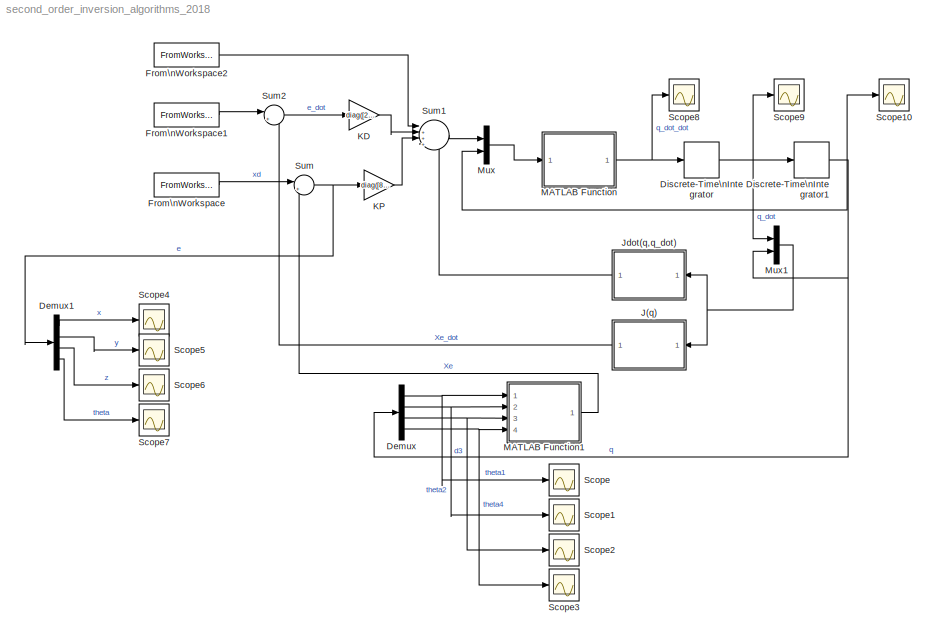
MODEL second_order_inversion_algorithms_2018
KIND model
BLOCK [Demux] Demux
  DisplayOption = bar
  Ports = [1, 4]
  SID = 18
BLOCK [Demux] Demux1
  DisplayOption = bar
  Ports = [1, 4]
  SID = 46
BLOCK [DiscreteIntegrator] Discrete-Time\nIntegrator
  ICPrevOutput = DiscIntNeverNeededParam
  ICPrevScaledInput = DiscIntNeverNeededParam
  InitialCondition = q0_dot
  InitialConditionSetting = Auto
  Ports = [1, 1]
  SID = 11
  SampleTime = Tc
BLOCK [DiscreteIntegrator] Discrete-Time\nIntegrator1
  ICPrevOutput = DiscIntNeverNeededParam
  ICPrevScaledInput = DiscIntNeverNeededParam
  InitialCondition = q0
  InitialConditionSetting = Auto
  Ports = [1, 1]
  SID = 36
  SampleTime = Tc
BLOCK [FromWorkspace] From\nWorkspace
  SID = 2
  SampleTime = Tc
  VariableName = [t pd theta_d]
  ZeroCross = on
BLOCK [FromWorkspace] From\nWorkspace1
  SID = 5
  SampleTime = Tc
  VariableName = [t pd_dot theta_d_dot]
  ZeroCross = on
BLOCK [FromWorkspace] From\nWorkspace2
  SID = 32
  SampleTime = Tc
  VariableName = [t pd_dot_dot theta_d_dot_dot]
  ZeroCross = on
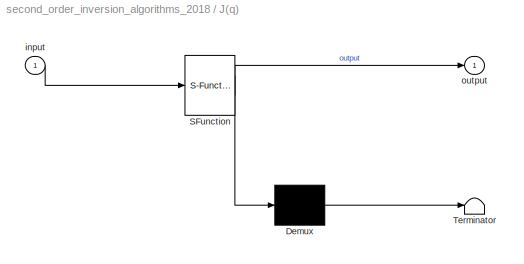
BLOCK [SubSystem] J(q)
  ErrorFcn = Stateflow.Translate.translate
  PermitHierarchicalResolution = ExplicitOnly
  Ports = [1, 1]
  RequestExecContextInheritance = off
  SFBlockType = MATLAB Function
  SID = 38
  TreatAsAtomicUnit = on
BLOCK [Demux] J(q)/ Demux 
  Outputs = 1
  Ports = [1, 1]
  SID = 38::20
BLOCK [S-Function] J(q)/ SFunction 
  EnableBusSupport = on
  FunctionName = sf_sfun
  PortCounts = [1 2]
  Ports = [1, 2]
  SFcnIsStateOwnerBlock = off
  SFunctionDeploymentMode = off
  SID = 38::19
  Tag = Stateflow S-Function second_order_inversion_algorithms_2018 4
BLOCK [Terminator] J(q)/ Terminator 
  SID = 38::21
BLOCK [Inport] J(q)/input
  IconDisplay = Port number
  SID = 38::1
BLOCK [Outport] J(q)/output
  IconDisplay = Port number
  SID = 38::5
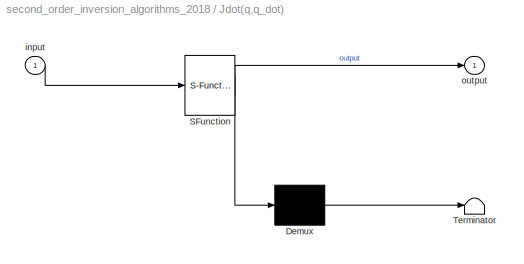
BLOCK [SubSystem] Jdot(q,q_dot)
  ErrorFcn = Stateflow.Translate.translate
  PermitHierarchicalResolution = ExplicitOnly
  Ports = [1, 1]
  RequestExecContextInheritance = off
  SFBlockType = MATLAB Function
  SID = 37
  TreatAsAtomicUnit = on
BLOCK [Demux] Jdot(q,q_dot)/ Demux 
  Outputs = 1
  Ports = [1, 1]
  SID = 37::20
BLOCK [S-Function] Jdot(q,q_dot)/ SFunction 
  EnableBusSupport = on
  FunctionName = sf_sfun
  PortCounts = [1 2]
  Ports = [1, 2]
  SFcnIsStateOwnerBlock = off
  SFunctionDeploymentMode = off
  SID = 37::19
  Tag = Stateflow S-Function second_order_inversion_algorithms_2018 3
BLOCK [Terminator] Jdot(q,q_dot)/ Terminator 
  SID = 37::21
BLOCK [Inport] Jdot(q,q_dot)/input
  IconDisplay = Port number
  SID = 37::1
BLOCK [Outport] Jdot(q,q_dot)/output
  IconDisplay = Port number
  SID = 37::5
BLOCK [Gain] KD
  Gain = diag([250 250 1000 1000])
  Multiplication = Matrix(K*u) (u vector)
  OutDataTypeStr = Inherit: Inherit via internal rule
  ParamDataTypeStr = Inherit: Inherit via internal rule
  SID = 35
  SaturateOnIntegerOverflow = off
BLOCK [Gain] KP
  Gain = diag([8000 8000 80000 80000])
  Multiplication = Matrix(K*u) (u vector)
  OutDataTypeStr = Inherit: Inherit via internal rule
  ParamDataTypeStr = Inherit: Inherit via internal rule
  SID = 8
  SaturateOnIntegerOverflow = off
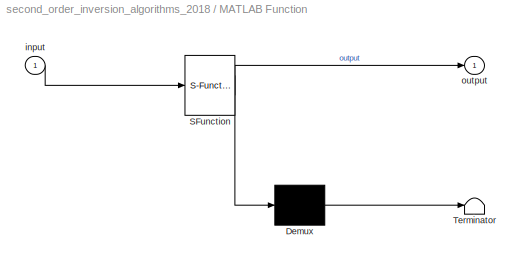
BLOCK [SubSystem] MATLAB Function
  ErrorFcn = Stateflow.Translate.translate
  PermitHierarchicalResolution = ExplicitOnly
  Ports = [1, 1]
  RequestExecContextInheritance = off
  SFBlockType = MATLAB Function
  SID = 10
  TreatAsAtomicUnit = on
BLOCK [Demux] MATLAB Function/ Demux 
  Outputs = 1
  Ports = [1, 1]
  SID = 10::30
BLOCK [S-Function] MATLAB Function/ SFunction 
  EnableBusSupport = on
  FunctionName = sf_sfun
  PortCounts = [1 2]
  Ports = [1, 2]
  SFcnIsStateOwnerBlock = off
  SFunctionDeploymentMode = off
  SID = 10::29
  Tag = Stateflow S-Function second_order_inversion_algorithms_2018 1
BLOCK [Terminator] MATLAB Function/ Terminator 
  SID = 10::31
BLOCK [Inport] MATLAB Function/input
  IconDisplay = Port number
  SID = 10::1
BLOCK [Outport] MATLAB Function/output
  IconDisplay = Port number
  SID = 10::5
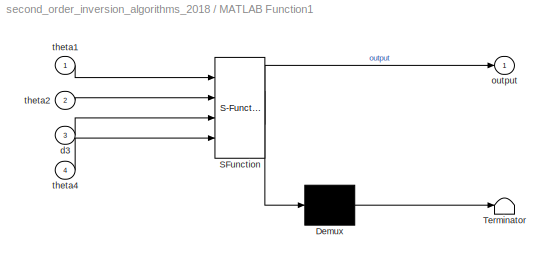
BLOCK [SubSystem] MATLAB Function1
  ErrorFcn = Stateflow.Translate.translate
  PermitHierarchicalResolution = ExplicitOnly
  Ports = [4, 1]
  RequestExecContextInheritance = off
  SFBlockType = MATLAB Function
  SID = 15
  TreatAsAtomicUnit = on
BLOCK [Demux] MATLAB Function1/ Demux 
  Outputs = 1
  Ports = [1, 1]
  SID = 15::30
BLOCK [S-Function] MATLAB Function1/ SFunction 
  EnableBusSupport = on
  FunctionName = sf_sfun
  PortCounts = [4 2]
  Ports = [4, 2]
  SFcnIsStateOwnerBlock = off
  SFunctionDeploymentMode = off
  SID = 15::29
  Tag = Stateflow S-Function second_order_inversion_algorithms_2018 2
BLOCK [Terminator] MATLAB Function1/ Terminator 
  SID = 15::31
BLOCK [Inport] MATLAB Function1/d3
  IconDisplay = Port number
  Port = 3
  SID = 15::24
BLOCK [Outport] MATLAB Function1/output
  IconDisplay = Port number
  SID = 15::22
BLOCK [Inport] MATLAB Function1/theta1
  IconDisplay = Port number
  SID = 15::1
BLOCK [Inport] MATLAB Function1/theta2
  IconDisplay = Port number
  Port = 2
  SID = 15::23
BLOCK [Inport] MATLAB Function1/theta4
  IconDisplay = Port number
  Port = 4
  SID = 15::25
BLOCK [Mux] Mux
  DisplayOption = bar
  Inputs = 2
  Ports = [2, 1]
  SID = 21
BLOCK [Mux] Mux1
  DisplayOption = bar
  Inputs = 2
  Ports = [2, 1]
  SID = 40
BLOCK [Scope] Scope
  Floating = off
  NumInputPorts = 1
  Ports = [1]
  SID = 41
  ScopeSpecificationString = Simulink.scopes.TimeScopeBlockCfg('CurrentConfiguration', extmgr.ConfigurationSet(extmgr.Configuration('Core','General UI',true),extmgr.Configuration('Core','Source UI',true),extmgr.Configuration('Sources','WiredSimulink',true,'DataLoggingVariableName','theta1','DataLogging',true,'DataLoggingSaveFormat','StructureWithTime'),extmgr.Configuration('Visuals','Time Domain',true,'SerializedDisplays',{st...<+1424ch>
BLOCK [Scope] Scope1
  Floating = off
  NumInputPorts = 1
  Ports = [1]
  SID = 42
  ScopeSpecificationString = Simulink.scopes.TimeScopeBlockCfg('CurrentConfiguration', extmgr.ConfigurationSet(extmgr.Configuration('Core','General UI',true),extmgr.Configuration('Core','Source UI',true),extmgr.Configuration('Sources','WiredSimulink',true,'DataLoggingVariableName','theta2','DataLogging',true,'DataLoggingSaveFormat','StructureWithTime'),extmgr.Configuration('Visuals','Time Domain',true,'SerializedDisplays',{st...<+1424ch>
BLOCK [Scope] Scope10
  Floating = off
  NumInputPorts = 1
  Ports = [1]
  SID = 53
  ScopeSpecificationString = Simulink.scopes.TimeScopeBlockCfg('CurrentConfiguration', extmgr.ConfigurationSet(extmgr.Configuration('Core','General UI',true),extmgr.Configuration('Core','Source UI',true),extmgr.Configuration('Sources','WiredSimulink',true,'DataLoggingVariableName','q','DataLogging',true,'DataLoggingSaveFormat','Array'),extmgr.Configuration('Visuals','Time Domain',true,'SerializedDisplays',{struct('MinYLimReal...<+1422ch>
BLOCK [Scope] Scope2
  Floating = off
  NumInputPorts = 1
  Ports = [1]
  SID = 43
  ScopeSpecificationString = Simulink.scopes.TimeScopeBlockCfg('CurrentConfiguration', extmgr.ConfigurationSet(extmgr.Configuration('Core','General UI',true),extmgr.Configuration('Core','Source UI',true),extmgr.Configuration('Sources','WiredSimulink',true,'DataLoggingVariableName','d3','DataLogging',true,'DataLoggingSaveFormat','StructureWithTime'),extmgr.Configuration('Visuals','Time Domain',true,'SerializedDisplays',{struct...<+1414ch>
BLOCK [Scope] Scope3
  Floating = off
  NumInputPorts = 1
  Ports = [1]
  SID = 44
  ScopeSpecificationString = Simulink.scopes.TimeScopeBlockCfg('CurrentConfiguration', extmgr.ConfigurationSet(extmgr.Configuration('Core','General UI',true),extmgr.Configuration('Core','Source UI',true),extmgr.Configuration('Sources','WiredSimulink',true,'DataLoggingVariableName','theta4','DataLogging',true,'DataLoggingSaveFormat','StructureWithTime'),extmgr.Configuration('Visuals','Time Domain',true,'SerializedDisplays',{st...<+2836ch>
BLOCK [Scope] Scope4
  Floating = off
  NumInputPorts = 1
  Ports = [1]
  SID = 45
  ScopeSpecificationString = Simulink.scopes.TimeScopeBlockCfg('CurrentConfiguration', extmgr.ConfigurationSet(extmgr.Configuration('Core','General UI',true),extmgr.Configuration('Core','Source UI',true),extmgr.Configuration('Sources','WiredSimulink',true,'DataLoggingVariableName','x','DataLogging',true,'DataLoggingSaveFormat','StructureWithTime'),extmgr.Configuration('Visuals','Time Domain',true,'SerializedDisplays',{struct(...<+1414ch>
BLOCK [Scope] Scope5
  Floating = off
  NumInputPorts = 1
  Ports = [1]
  SID = 48
  ScopeSpecificationString = Simulink.scopes.TimeScopeBlockCfg('CurrentConfiguration', extmgr.ConfigurationSet(extmgr.Configuration('Core','General UI',true),extmgr.Configuration('Core','Source UI',true),extmgr.Configuration('Sources','WiredSimulink',true,'DataLoggingVariableName','y','DataLogging',true,'DataLoggingSaveFormat','StructureWithTime'),extmgr.Configuration('Visuals','Time Domain',true,'SerializedDisplays',{struct(...<+1414ch>
BLOCK [Scope] Scope6
  Floating = off
  NumInputPorts = 1
  Ports = [1]
  SID = 49
  ScopeSpecificationString = Simulink.scopes.TimeScopeBlockCfg('CurrentConfiguration', extmgr.ConfigurationSet(extmgr.Configuration('Core','General UI',true),extmgr.Configuration('Core','Source UI',true),extmgr.Configuration('Sources','WiredSimulink',true,'DataLoggingVariableName','z','DataLogging',true,'DataLoggingSaveFormat','StructureWithTime'),extmgr.Configuration('Visuals','Time Domain',true,'SerializedDisplays',{struct(...<+1414ch>
BLOCK [Scope] Scope7
  Floating = off
  NumInputPorts = 1
  Ports = [1]
  SID = 50
  ScopeSpecificationString = Simulink.scopes.TimeScopeBlockCfg('CurrentConfiguration', extmgr.ConfigurationSet(extmgr.Configuration('Core','General UI',true),extmgr.Configuration('Core','Source UI',true),extmgr.Configuration('Sources','WiredSimulink',true,'DataLoggingVariableName','theta','DataLogging',true,'DataLoggingSaveFormat','StructureWithTime'),extmgr.Configuration('Visuals','Time Domain',true,'SerializedDisplays',{str...<+1470ch>
BLOCK [Scope] Scope8
  Floating = off
  NumInputPorts = 1
  Ports = [1]
  SID = 51
  ScopeSpecificationString = Simulink.scopes.TimeScopeBlockCfg('CurrentConfiguration', extmgr.ConfigurationSet(extmgr.Configuration('Core','General UI',true),extmgr.Configuration('Core','Source UI',true),extmgr.Configuration('Sources','WiredSimulink',true,'DataLoggingVariableName','q_dot_dot','DataLogging',true,'DataLoggingSaveFormat','Array'),extmgr.Configuration('Visuals','Time Domain',true,'SerializedDisplays',{struct('Min...<+1476ch>
BLOCK [Scope] Scope9
  Floating = off
  NumInputPorts = 1
  Ports = [1]
  SID = 52
  ScopeSpecificationString = Simulink.scopes.TimeScopeBlockCfg('CurrentConfiguration', extmgr.ConfigurationSet(extmgr.Configuration('Core','General UI',true),extmgr.Configuration('Core','Source UI',true),extmgr.Configuration('Sources','WiredSimulink',true,'DataLoggingVariableName','q_dot','DataLogging',true,'DataLoggingSaveFormat','Array'),extmgr.Configuration('Visuals','Time Domain',true,'SerializedDisplays',{struct('MinYLim...<+1446ch>
BLOCK [Sum] Sum
  IconShape = round
  InputSameDT = off
  Inputs = |+-
  OutDataTypeStr = Inherit: Inherit via internal rule
  Ports = [2, 1]
  SID = 6
  SaturateOnIntegerOverflow = off
BLOCK [Sum] Sum1
  IconShape = round
  InputSameDT = off
  Inputs = |+++-
  OutDataTypeStr = Inherit: Inherit via internal rule
  Ports = [4, 1]
  SID = 13
  SaturateOnIntegerOverflow = off
BLOCK [Sum] Sum2
  IconShape = round
  InputSameDT = off
  Inputs = |+-
  OutDataTypeStr = Inherit: Inherit via internal rule
  Ports = [2, 1]
  SID = 34
  SaturateOnIntegerOverflow = off
LINE Demux1:1 -> Scope4:1
LINE Demux1:2 -> Scope5:1
LINE Demux1:3 -> Scope6:1
LINE Demux1:4 -> Scope7:1
NET Demux:1 -> MATLAB Function1:1, Scope:1
NET Demux:2 -> MATLAB Function1:2, Scope1:1
NET Demux:3 -> MATLAB Function1:3, Scope2:1
NET Demux:4 -> MATLAB Function1:4, Scope3:1
NET Discrete-Time\nIntegrator1:1 -> Demux:1, Mux1:2, Mux:2, Scope10:1
NET Discrete-Time\nIntegrator:1 -> Discrete-Time\nIntegrator1:1, Mux1:1, Scope9:1
LINE From\nWorkspace1:1 -> Sum2:1
LINE From\nWorkspace2:1 -> Sum1:1
LINE From\nWorkspace:1 -> Sum:1
LINE J(q)/ Demux :1 -> J(q)/ Terminator :1
LINE J(q)/ SFunction :1 -> J(q)/ Demux :1
LINE J(q)/ SFunction :2 -> J(q)/output:1
LINE J(q)/input:1 -> J(q)/ SFunction :1
LINE J(q):1 -> Sum2:2
LINE Jdot(q,q_dot)/ Demux :1 -> Jdot(q,q_dot)/ Terminator :1
LINE Jdot(q,q_dot)/ SFunction :1 -> Jdot(q,q_dot)/ Demux :1
LINE Jdot(q,q_dot)/ SFunction :2 -> Jdot(q,q_dot)/output:1
LINE Jdot(q,q_dot)/input:1 -> Jdot(q,q_dot)/ SFunction :1
LINE Jdot(q,q_dot):1 -> Sum1:4
LINE KD:1 -> Sum1:2
LINE KP:1 -> Sum1:3
LINE MATLAB Function/ Demux :1 -> MATLAB Function/ Terminator :1
LINE MATLAB Function/ SFunction :1 -> MATLAB Function/ Demux :1
LINE MATLAB Function/ SFunction :2 -> MATLAB Function/output:1
LINE MATLAB Function/input:1 -> MATLAB Function/ SFunction :1
LINE MATLAB Function1/ Demux :1 -> MATLAB Function1/ Terminator :1
LINE MATLAB Function1/ SFunction :1 -> MATLAB Function1/ Demux :1
LINE MATLAB Function1/ SFunction :2 -> MATLAB Function1/output:1
LINE MATLAB Function1/d3:1 -> MATLAB Function1/ SFunction :3
LINE MATLAB Function1/theta1:1 -> MATLAB Function1/ SFunction :1
LINE MATLAB Function1/theta2:1 -> MATLAB Function1/ SFunction :2
LINE MATLAB Function1/theta4:1 -> MATLAB Function1/ SFunction :4
LINE MATLAB Function1:1 -> Sum:2
NET MATLAB Function:1 -> Discrete-Time\nIntegrator:1, Scope8:1
NET Mux1:1 -> J(q):1, Jdot(q,q_dot):1
LINE Mux:1 -> MATLAB Function:1
LINE Sum1:1 -> Mux:1
LINE Sum2:1 -> KD:1
NET Sum:1 -> Demux1:1, KP:1
note: NET lines group one-source signal fan-out (src -> all destinations, sorted); 1:1 wires keep LINE
CHART MATLAB Function states=1 transitions=1
  STATE_LABEL 'eML_blk_kernel()'
CHART MATLAB Function1 states=1 transitions=1
  STATE_LABEL 'eML_blk_kernel()'
CHART Jdot(q,q_dot) states=1 transitions=1
  STATE_LABEL 'eML_blk_kernel()'
CHART J(q) states=1 transitions=1
  STATE_LABEL 'eML_blk_kernel()'
